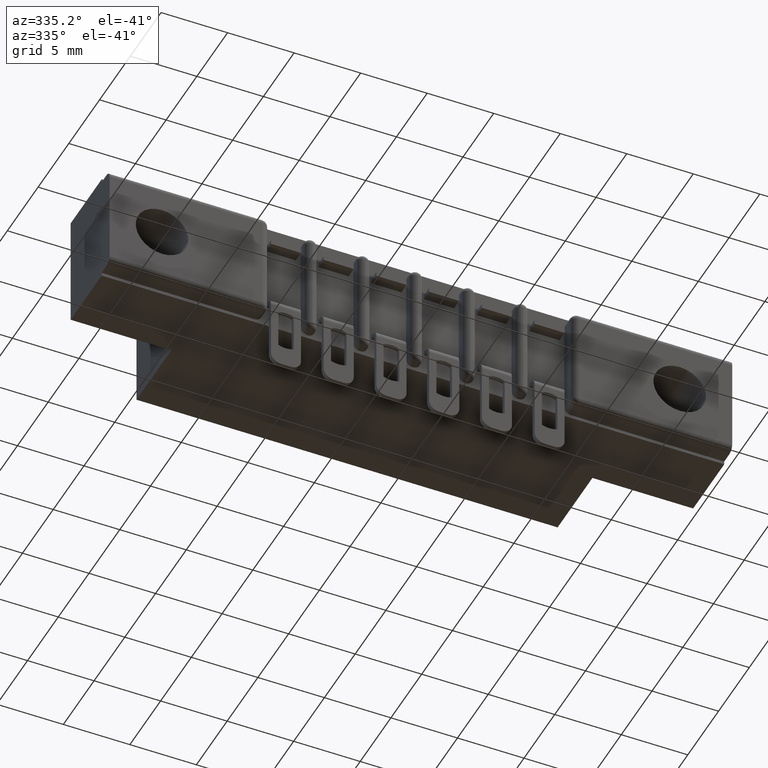
[diagram: clean part render]
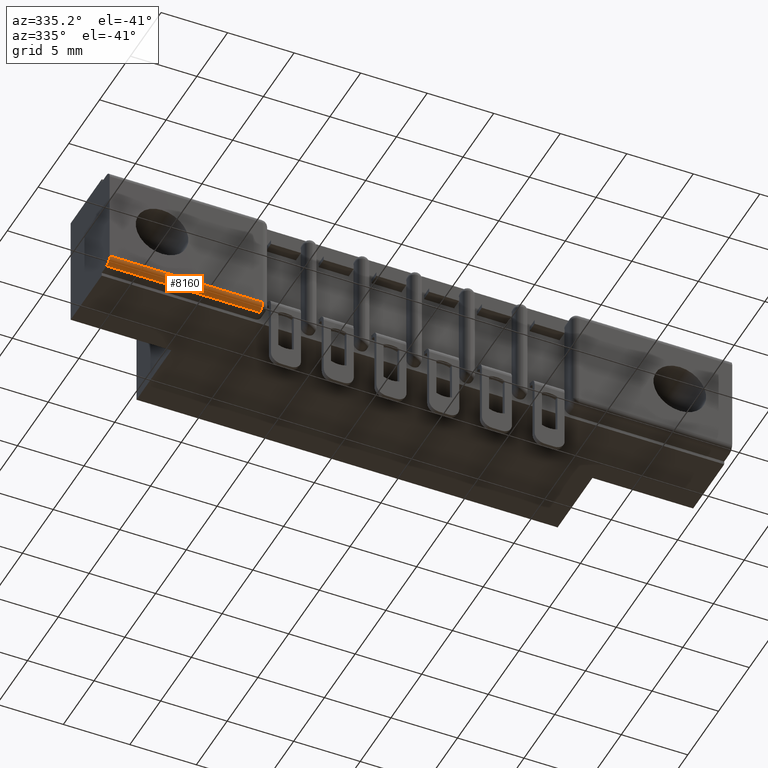
[diagram: same view with one face highlighted and labeled with its STEP entity id]
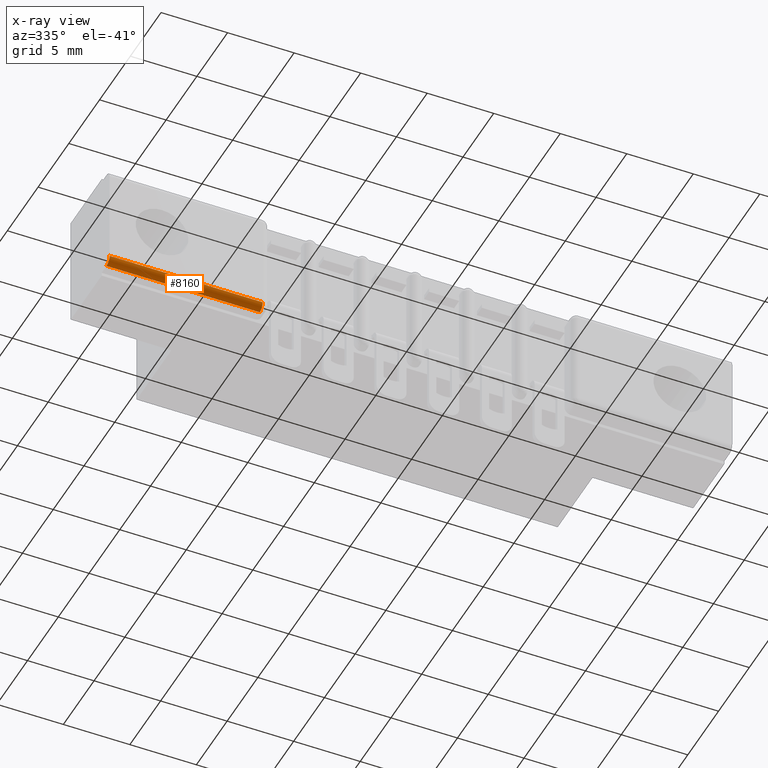
[diagram: x-ray of the same camera — body ghosted, the highlighted face saturated]
A machine part, auxiliary view. The second image highlights one B-rep face of the part: STEP entity #8160.
The next image is the same camera in x-ray: the body ghosted, the highlighted face saturated — about 0% of this face is hidden behind the body in this view.
In plain terms, the highlighted cylindrical surface (edge-blend (fillet) strip) has radius 0.508 mm, axis along (1, 0, 0).
Its self-contained STEP definition (entity closure, byte-faithful):
#503 = VERTEX_POINT ( 'NONE', #8650 ) ;
#800 = CIRCLE ( 'NONE', #8981, 0.01999999999999999000 ) ;
#819 = EDGE_LOOP ( 'NONE', ( #2874, #5267, #4834, #4362 ) ) ;
#1805 = LINE ( 'NONE', #6920, #6982 ) ;
#1841 = CARTESIAN_POINT ( 'NONE',  ( 0.0000000000000000000, 0.02000000000000000000, -0.3130000000000001100 ) ) ;
#2439 = AXIS2_PLACEMENT_3D ( 'NONE', #6966, #3611, #8795 ) ;
#2558 = DIRECTION ( 'NONE',  ( 0.0000000000000000000, 0.0000000000000000000, -1.000000000000000000 ) ) ;
#2682 = CYLINDRICAL_SURFACE ( 'NONE', #5634, 0.01999999999999999000 ) ;
#2804 = DIRECTION ( 'NONE',  ( 0.0000000000000000000, 0.0000000000000000000, -1.000000000000000000 ) ) ;
#2874 = ORIENTED_EDGE ( 'NONE', *, *, #8624, .F. ) ;
#3224 = CARTESIAN_POINT ( 'NONE',  ( 0.4530000000000003500, 0.02000000000000000000, -0.3330000000000001300 ) ) ;
#3402 = CARTESIAN_POINT ( 'NONE',  ( 0.4530000000000003500, 0.02000000000000000000, -0.3130000000000001100 ) ) ;
#3409 = DIRECTION ( 'NONE',  ( 1.000000000000000000, 0.0000000000000000000, 0.0000000000000000000 ) ) ;
#3517 = CIRCLE ( 'NONE', #2439, 0.01999999999999999000 ) ;
#3611 = DIRECTION ( 'NONE',  ( -1.000000000000000000, 0.0000000000000000000, -0.0000000000000000000 ) ) ;
#3926 = VECTOR ( 'NONE', #8159, 39.37007874015748100 ) ;
#4123 = VERTEX_POINT ( 'NONE', #5933 ) ;
#4362 = ORIENTED_EDGE ( 'NONE', *, *, #10913, .F. ) ;
#4834 = ORIENTED_EDGE ( 'NONE', *, *, #9078, .F. ) ;
#5267 = ORIENTED_EDGE ( 'NONE', *, *, #5338, .F. ) ;
#5338 = EDGE_CURVE ( 'NONE', #7332, #7756, #8678, .T. ) ;
#5634 = AXIS2_PLACEMENT_3D ( 'NONE', #1841, #8569, #2804 ) ;
#5933 = CARTESIAN_POINT ( 'NONE',  ( 0.0000000000000000000, 0.0000000000000000000, -0.3130000000000001100 ) ) ;
#6760 = DIRECTION ( 'NONE',  ( 1.000000000000000000, 0.0000000000000000000, 0.0000000000000000000 ) ) ;
#6920 = CARTESIAN_POINT ( 'NONE',  ( 0.0000000000000000000, 0.0000000000000000000, -0.3130000000000001100 ) ) ;
#6966 = CARTESIAN_POINT ( 'NONE',  ( 0.0000000000000000000, 0.02000000000000000000, -0.3130000000000001100 ) ) ;
#6982 = VECTOR ( 'NONE', #3409, 39.37007874015748100 ) ;
#7332 = VERTEX_POINT ( 'NONE', #3224 ) ;
#7756 = VERTEX_POINT ( 'NONE', #9358 ) ;
#8159 = DIRECTION ( 'NONE',  ( -1.000000000000000000, -0.0000000000000000000, -0.0000000000000000000 ) ) ;
#8160 = ADVANCED_FACE ( 'NONE', ( #9426 ), #2682, .T. ) ;
#8569 = DIRECTION ( 'NONE',  ( 1.000000000000000000, 0.0000000000000000000, 0.0000000000000000000 ) ) ;
#8624 = EDGE_CURVE ( 'NONE', #7756, #4123, #3517, .T. ) ;
#8650 = CARTESIAN_POINT ( 'NONE',  ( 0.4530000000000003500, 0.0000000000000000000, -0.3130000000000001100 ) ) ;
#8678 = LINE ( 'NONE', #8864, #3926 ) ;
#8795 = DIRECTION ( 'NONE',  ( 0.0000000000000000000, 0.0000000000000000000, -1.000000000000000000 ) ) ;
#8864 = CARTESIAN_POINT ( 'NONE',  ( 0.0000000000000000000, 0.02000000000000000000, -0.3330000000000001300 ) ) ;
#8981 = AXIS2_PLACEMENT_3D ( 'NONE', #3402, #6760, #2558 ) ;
#9078 = EDGE_CURVE ( 'NONE', #503, #7332, #800, .T. ) ;
#9358 = CARTESIAN_POINT ( 'NONE',  ( 1.083812417245411700E-017, 0.02000000000000000000, -0.3330000000000001300 ) ) ;
#9426 = FACE_OUTER_BOUND ( 'NONE', #819, .T. ) ;
#10913 = EDGE_CURVE ( 'NONE', #4123, #503, #1805, .T. ) ;